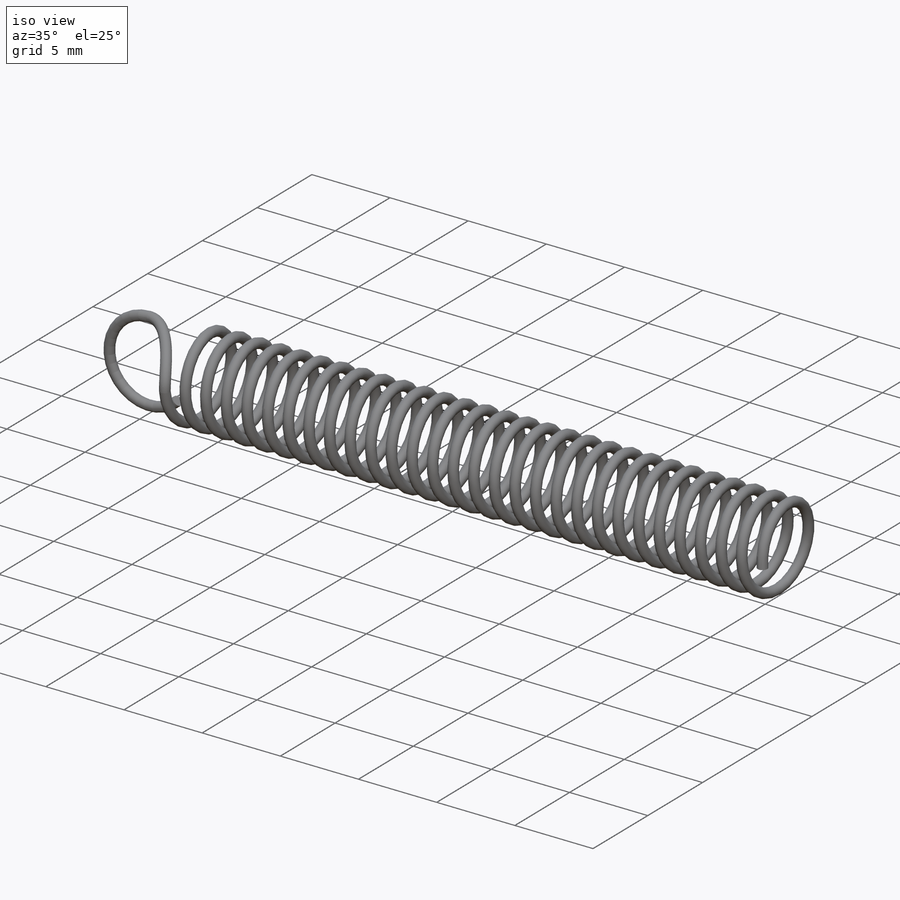
[diagram: iso view]
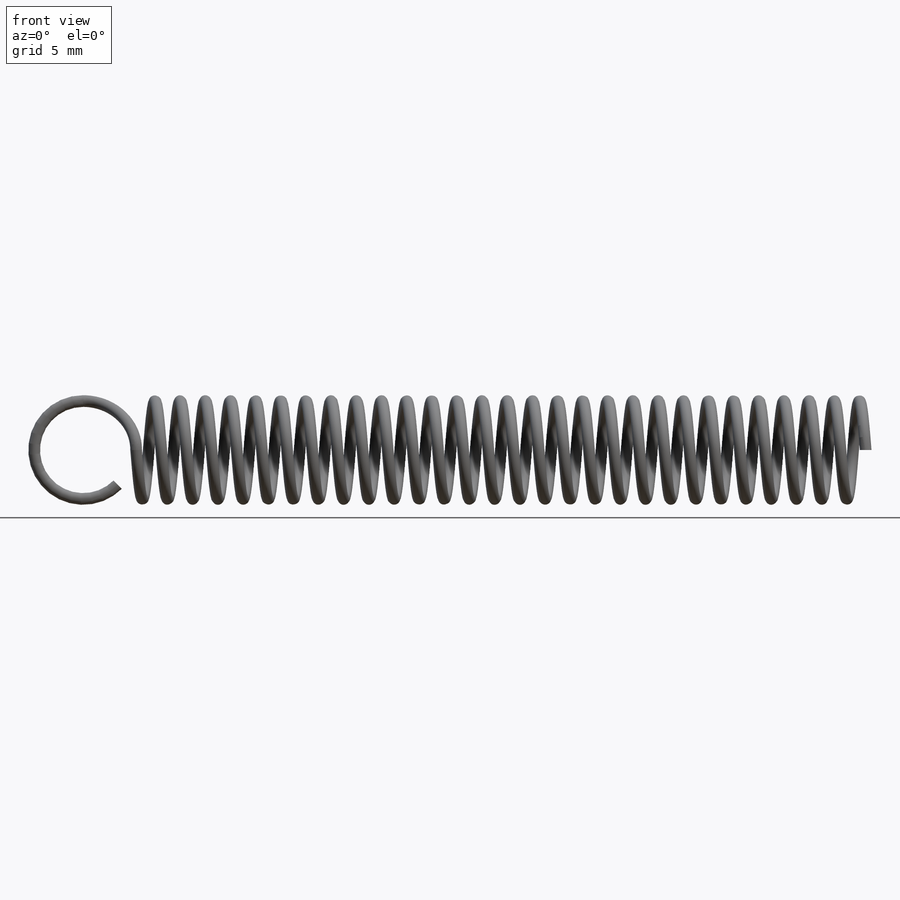
[diagram: front view]
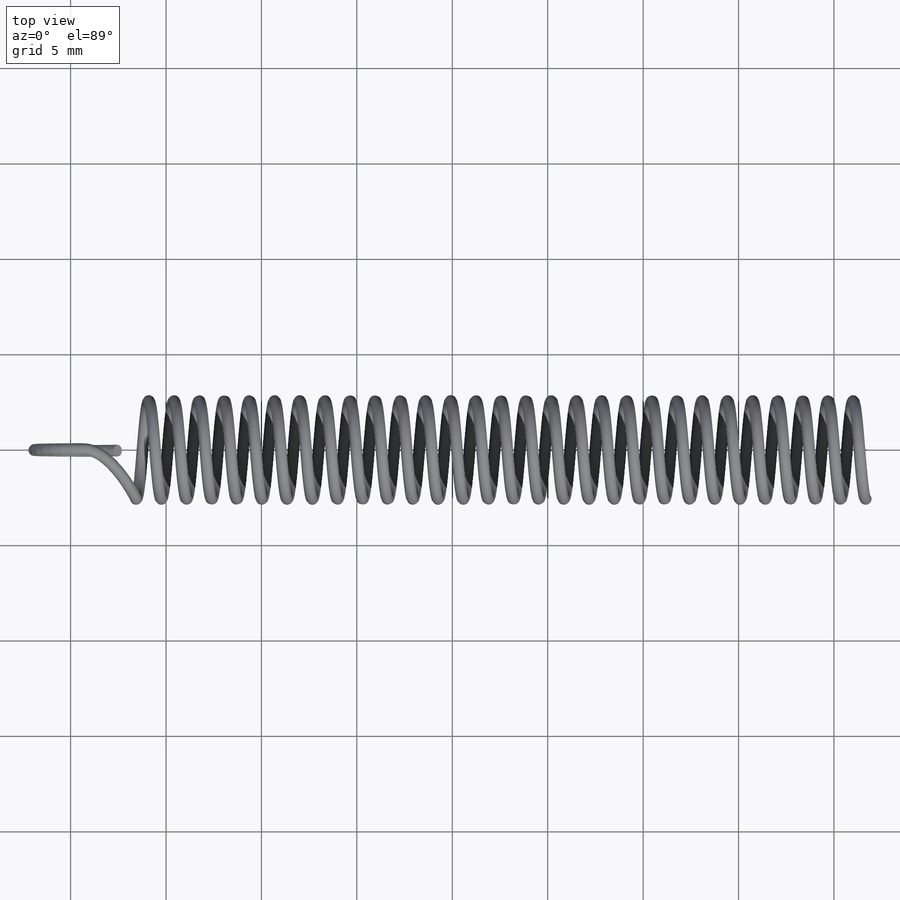
[diagram: top view]
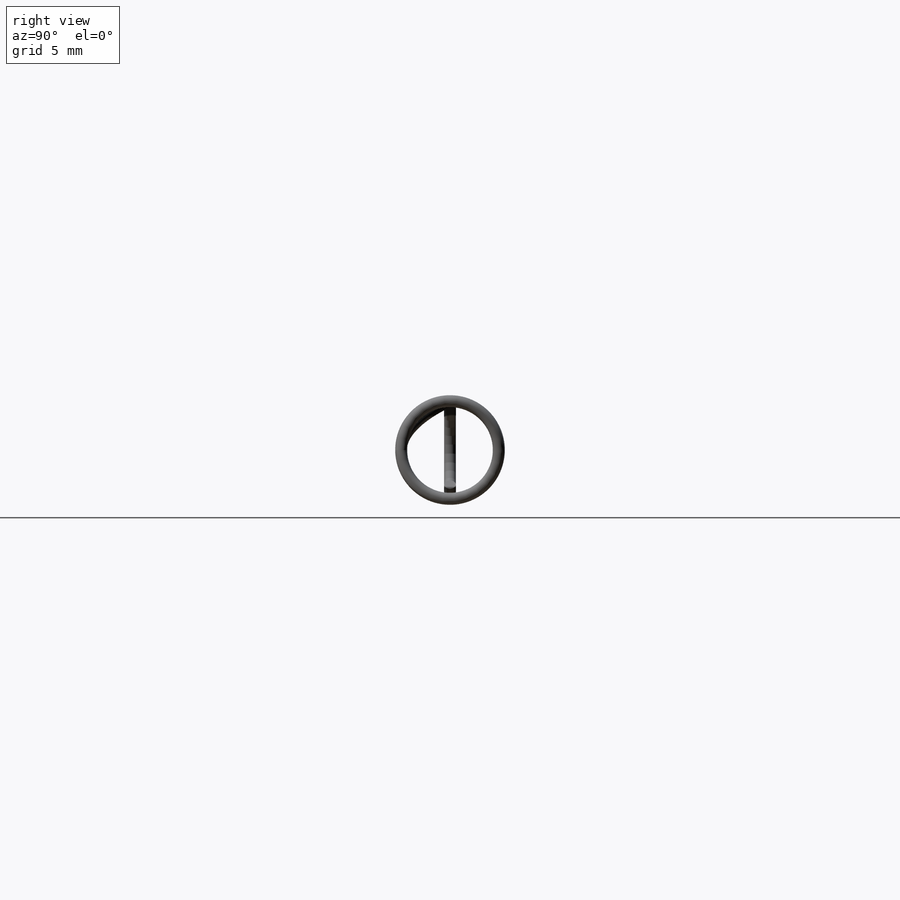
[diagram: right view]
SOLIDWORKS PART (.sldprt)
format: sldprt  version: not decoded by parser v0  size: 1,186,816 bytes
history: native  units: mm
features: sketch x7, plane x4, sweep x2, material x1, helix x1, pattern_circular x1 (+12 scaffold rows collapsed)
feature tree (28):
  scaffold x12  (default folders/planes/origin — collapsed)
  material  "Material <not specified>"
  sketch  "Sketch1"  dims[c1.D1=~30.58678mm c1.D2=15.875mm c1.D4=8.3058mm c2.D1=140.97mm c2.D4=66.675mm c3.D4=45.0deg c3.D5=109.22mm c3.D3=0.6096mm]
  plane  "Plane1"
  sketch  "Sketch2"  dims[D1=15.875mm D2=0.6096mm]
  sketch  "3DSketch6"
  plane  "Plane2"
  sketch  "Sketch6"  dims[D1=1.7526mm]
  helix  "Helix/Spiral1"  Pitch=109.22mm
  plane  "Plane3"
  plane  "Plane4"
  sketch  "Sketch7"  dims[D1=1.7526mm]
  sweep  "Sweep1"
  sweep  "Sweep2"
  pattern_circular  "CirPattern1"  Count=2 Angle=180deg
  sketch  "Axis2"
  sketch  "Axis3"
decode coverage: 6 of 11 modeling features carry decoded parameters
note: ~ marks probable driven/reference dimensions
note: suppression state not decoded; provenance and decode notes live in map.json
